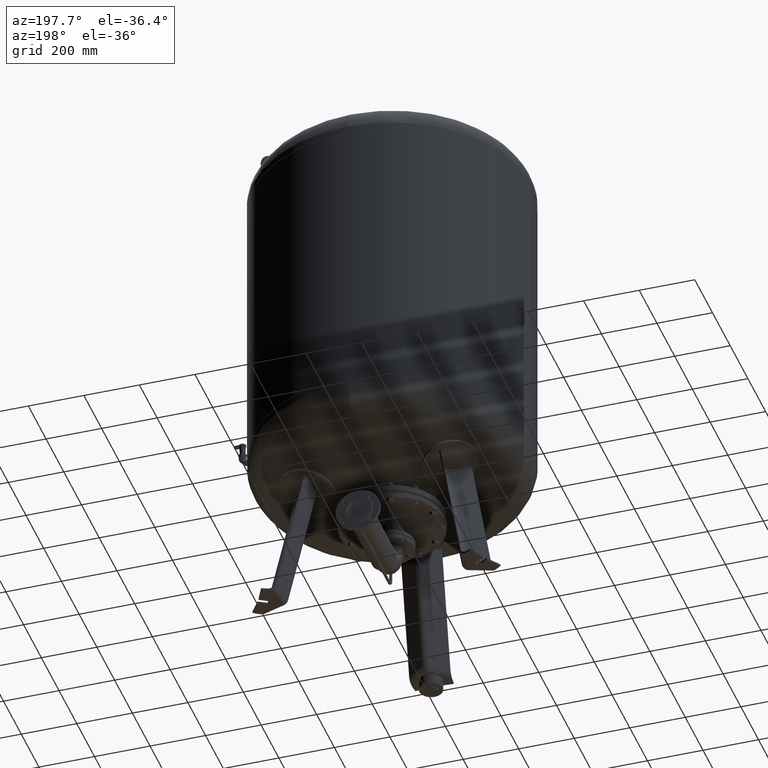
[diagram: clean part render]
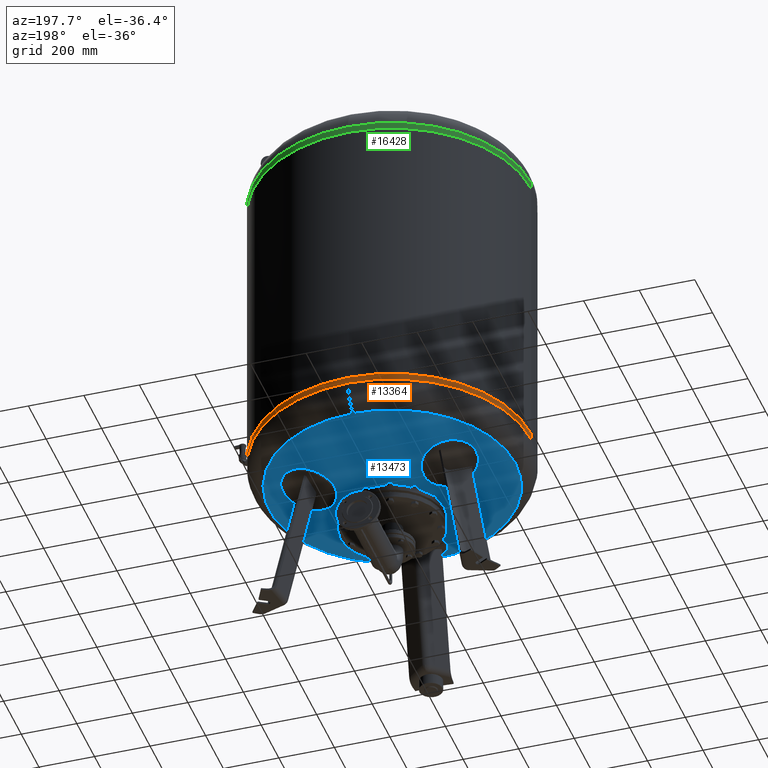
[diagram: same view with three faces highlighted in distinct colors, each labeled with its STEP entity id]
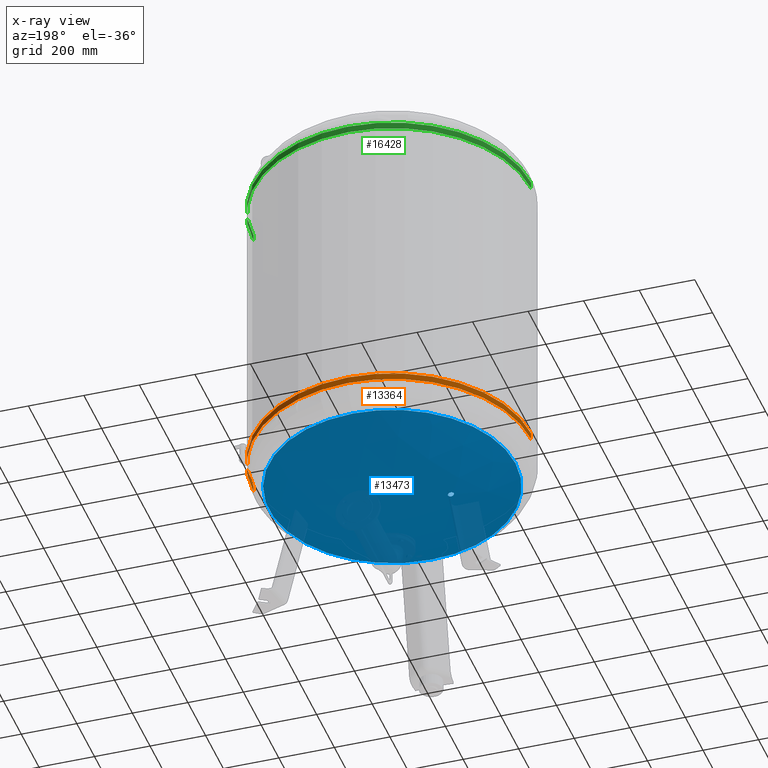
[diagram: x-ray of the same camera — body ghosted, the three highlighted faces saturated]
A machine part, auxiliary view with three faces highlighted in distinct colors.
The next image is the same camera in x-ray (body ghosted, the three faces saturated) — at least one of them is partly hidden behind the body in this view.
Their STEP definitions:

[orange] entity #13364 — the highlighted cylindrical surface (partial cylindrical patch) has radius 500 mm, axis along (-0, -0, 1).
#13314=CARTESIAN_POINT('',(-2.756489E-014,-3.774564E-014,665.477677536359810));
#13315=DIRECTION('',(-1.341503E-016,-1.836970E-016,1.0));
#13316=DIRECTION('',(-1.0,0.0,0.0));
#13317=AXIS2_PLACEMENT_3D('',#13314,#13315,#13316);
#13318=CYLINDRICAL_SURFACE('',#13317,500.0);
#13319=CARTESIAN_POINT('',(-500.0,-3.995410E-014,677.500000000000000));
#13320=VERTEX_POINT('',#13319);
#13321=CARTESIAN_POINT('',(-500.0,-3.553717E-014,653.455355072719390));
#13322=VERTEX_POINT('',#13321);
#13323=CARTESIAN_POINT('',(-500.0,-3.995410E-014,677.500000000000000));
#13324=DIRECTION('',(0.0,0.0,-1.0));
#13325=VECTOR('',#13324,24.044644927280615);
#13326=LINE('',#13323,#13325);
#13327=EDGE_CURVE('',#13320,#13322,#13326,.T.);
#13328=ORIENTED_EDGE('',*,*,#13327,.F.);
#13329=CARTESIAN_POINT('',(500.0,2.127622E-014,677.500000000000110));
#13330=VERTEX_POINT('',#13329);
#13331=CARTESIAN_POINT('',(-2.917769E-014,-3.995410E-014,677.500000000000000));
#13332=DIRECTION('',(0.0,0.0,1.0));
#13333=DIRECTION('',(-1.0,0.0,0.0));
#13334=AXIS2_PLACEMENT_3D('',#13331,#13332,#13333);
#13335=CIRCLE('',#13334,500.0);
#13336=EDGE_CURVE('',#13330,#13320,#13335,.T.);
#13337=ORIENTED_EDGE('',*,*,#13336,.F.);
#13338=CARTESIAN_POINT('',(500.0,2.569315E-014,653.455355072719500));
#13339=VERTEX_POINT('',#13338);
#13340=CARTESIAN_POINT('',(500.0,2.127622E-014,677.500000000000110));
#13341=DIRECTION('',(0.0,0.0,-1.0));
#13342=VECTOR('',#13341,24.044644927280615);
#13343=LINE('',#13340,#13342);
#13344=EDGE_CURVE('',#13330,#13339,#13343,.T.);
#13345=ORIENTED_EDGE('',*,*,#13344,.T.);
#13346=CARTESIAN_POINT('',(-6.123032E-014,499.999999999999940,653.455355072719610));
#13347=VERTEX_POINT('',#13346);
#13348=CARTESIAN_POINT('',(-2.595210E-014,-3.553717E-014,653.455355072719500));
#13349=DIRECTION('',(0.0,0.0,1.0));
#13350=DIRECTION('',(-1.0,0.0,0.0));
#13351=AXIS2_PLACEMENT_3D('',#13348,#13349,#13350);
#13352=CIRCLE('',#13351,500.0);
#13353=EDGE_CURVE('',#13339,#13347,#13352,.T.);
#13354=ORIENTED_EDGE('',*,*,#13353,.T.);
#13355=CARTESIAN_POINT('',(-2.595210E-014,-3.553717E-014,653.455355072719500));
#13356=DIRECTION('',(0.0,0.0,1.0));
#13357=DIRECTION('',(-1.0,0.0,0.0));
#13358=AXIS2_PLACEMENT_3D('',#13355,#13356,#13357);
#13359=CIRCLE('',#13358,500.0);
#13360=EDGE_CURVE('',#13347,#13322,#13359,.T.);
#13361=ORIENTED_EDGE('',*,*,#13360,.T.);
#13362=EDGE_LOOP('',(#13328,#13337,#13345,#13354,#13361));
#13363=FACE_OUTER_BOUND('',#13362,.T.);
#13364=ADVANCED_FACE('',(#13363),#13318,.T.);

[blue] entity #13473 — the highlighted spherical surface has radius 1006 mm.
#12859=CARTESIAN_POINT('',(-211.125624220251810,10.650000000000025,482.461211594779570));
#12860=VERTEX_POINT('',#12859);
#12876=CARTESIAN_POINT('',(-211.125624220251840,-10.649999999999979,482.461211594779460));
#12877=VERTEX_POINT('',#12876);
#12884=CARTESIAN_POINT('',(-211.125624220251840,-10.649999999999979,482.461211594779460));
#12885=CARTESIAN_POINT('',(-211.779366837099190,-10.649999999999979,482.601543445122730));
#12886=CARTESIAN_POINT('',(-212.455440132488210,-10.586020811985057,482.746668812052750));
#12887=CARTESIAN_POINT('',(-213.800320524656060,-10.316508147236522,483.035359855748140));
#12888=CARTESIAN_POINT('',(-214.469138658367290,-10.111032286166788,483.178927901604770));
#12889=CARTESIAN_POINT('',(-215.751922552204920,-9.567592266834247,483.454289478277810));
#12890=CARTESIAN_POINT('',(-216.366909830243170,-9.229195343095414,483.586302287240020));
#12891=CARTESIAN_POINT('',(-217.504221535740330,-8.447146982177264,483.830436995820550));
#12892=CARTESIAN_POINT('',(-218.026513927107150,-8.003446810011665,483.942552018269230));
#12893=CARTESIAN_POINT('',(-218.951040347873370,-7.057872723294627,484.141010422898830));
#12894=CARTESIAN_POINT('',(-219.384856037971620,-6.523702616499612,484.234133109701360));
#12895=CARTESIAN_POINT('',(-220.149485393383970,-5.360524383798429,484.398268132717360));
#12896=CARTESIAN_POINT('',(-220.480346687044520,-4.731549010339346,484.469290692466470));
#12897=CARTESIAN_POINT('',(-221.011686484263920,-3.419585184995595,484.583347899797220));
#12898=CARTESIAN_POINT('',(-221.212588135663030,-2.735551894637916,484.626473379908990));
#12899=CARTESIAN_POINT('',(-221.476101469240830,-1.360073995507774,484.683039063670090));
#12900=CARTESIAN_POINT('',(-221.538656816071100,-0.668618097348863,484.696467174334880));
#12901=CARTESIAN_POINT('',(-221.538656816071100,0.668618097348903,484.696467174334880));
#12902=CARTESIAN_POINT('',(-221.476101469240830,1.360073995507815,484.683039063670090));
#12903=CARTESIAN_POINT('',(-221.212588135663030,2.735551894637959,484.626473379908990));
#12904=CARTESIAN_POINT('',(-221.011686484263920,3.419585184995639,484.583347899797220));
#12905=CARTESIAN_POINT('',(-220.480346687044520,4.731549010339391,484.469290692466470));
#12906=CARTESIAN_POINT('',(-220.149485393383940,5.360524383798476,484.398268132717360));
#12907=CARTESIAN_POINT('',(-219.384856037971590,6.523702616499659,484.234133109701360));
#12908=CARTESIAN_POINT('',(-218.951040347873370,7.057872723294675,484.141010422898830));
#12909=CARTESIAN_POINT('',(-218.026513927107150,8.003446810011713,483.942552018269230));
#12910=CARTESIAN_POINT('',(-217.504221535740330,8.447146982177307,483.830436995820550));
#12911=CARTESIAN_POINT('',(-216.366909830243170,9.229195343095451,483.586302287240020));
#12912=CARTESIAN_POINT('',(-215.751922552204920,9.567592266834295,483.454289478277930));
#12913=CARTESIAN_POINT('',(-214.469138658367290,10.111032286166836,483.178927901604880));
#12914=CARTESIAN_POINT('',(-213.800320524656060,10.316508147236567,483.035359855748140));
#12915=CARTESIAN_POINT('',(-212.455440132488210,10.586020811985103,482.746668812052750));
#12916=CARTESIAN_POINT('',(-211.779366837099190,10.650000000000025,482.601543445122730));
#12917=CARTESIAN_POINT('',(-211.125624220251840,10.650000000000025,482.461211594779460));
#12918=B_SPLINE_CURVE_WITH_KNOTS('',3,(#12884,#12885,#12886,#12887,#12888,#12889,#12890,#12891,#12892,#12893,#12894,#12895,#12896,#12897,#12898,#12899,#12900,#12901,#12902,#12903,#12904,#12905,#12906,#12907,#12908,#12909,#12910,#12911,#12912,#12913,#12914,#12915,#12916,#12917),.UNSPECIFIED.,.F.,.U.,(4,2,2,2,2,2,2,2,2,2,2,2,2,2,2,2,4),(32.094068530974205,34.099972799808725,36.105877068643252,38.111781337477773,40.117685606312293,42.123539898358942,44.129394190405584,46.135248482452226,48.141102774498876,50.146957066545525,52.152811358592167,54.158665650638810,56.164519942685459,58.170424211519979,60.176328480354499,62.182232749189019,64.188137018023539),.UNSPECIFIED.);
#12919=EDGE_CURVE('',#12877,#12860,#12918,.T.);
#13372=CARTESIAN_POINT('',(1.211146E-014,-443.777777777777600,563.172616747466120));
#13373=VERTEX_POINT('',#13372);
#13389=CARTESIAN_POINT('',(-4.223385E-014,443.777777777777600,563.172616747466350));
#13390=VERTEX_POINT('',#13389);
#13398=CARTESIAN_POINT('',(-443.777777777777600,-1.895250E-014,563.172616747466240));
#13399=VERTEX_POINT('',#13398);
#13400=CARTESIAN_POINT('',(-1.384064E-014,-1.895250E-014,563.172616747466240));
#13401=DIRECTION('',(0.0,0.0,1.0));
#13402=DIRECTION('',(-1.0,0.0,0.0));
#13403=AXIS2_PLACEMENT_3D('',#13400,#13401,#13402);
#13404=CIRCLE('',#13403,443.777777777777600);
#13405=EDGE_CURVE('',#13390,#13399,#13404,.T.);
#13407=CARTESIAN_POINT('',(-1.384064E-014,-1.895250E-014,563.172616747466240));
#13408=DIRECTION('',(0.0,0.0,1.0));
#13409=DIRECTION('',(-1.0,0.0,0.0));
#13410=AXIS2_PLACEMENT_3D('',#13407,#13408,#13409);
#13411=CIRCLE('',#13410,443.777777777777600);
#13412=EDGE_CURVE('',#13399,#13373,#13411,.T.);
#13417=CARTESIAN_POINT('',(-2.223045E-013,-1.847992E-013,1466.0));
#13418=DIRECTION('',(0.0,-1.0,0.0));
#13419=DIRECTION('',(1.0,0.0,0.0));
#13420=AXIS2_PLACEMENT_3D('',#13417,#13418,#13419);
#13421=SPHERICAL_SURFACE('',#13420,1006.000000000000100);
#13422=ORIENTED_EDGE('',*,*,#13412,.F.);
#13423=ORIENTED_EDGE('',*,*,#13405,.F.);
#13424=CARTESIAN_POINT('',(-1.384064E-014,-1.895250E-014,563.172616747466240));
#13425=DIRECTION('',(0.0,0.0,1.0));
#13426=DIRECTION('',(-1.0,0.0,0.0));
#13427=AXIS2_PLACEMENT_3D('',#13424,#13425,#13426);
#13428=CIRCLE('',#13427,443.777777777777600);
#13429=EDGE_CURVE('',#13373,#13390,#13428,.T.);
#13430=ORIENTED_EDGE('',*,*,#13429,.F.);
#13431=EDGE_LOOP('',(#13422,#13423,#13430));
#13432=FACE_OUTER_BOUND('',#13431,.T.);
#13433=CARTESIAN_POINT('',(-211.125624220251840,10.650000000000025,482.461211594779460));
#13434=CARTESIAN_POINT('',(-210.471881601776740,10.650000000000025,482.320879744086770));
#13435=CARTESIAN_POINT('',(-209.795808291734690,10.586020811668353,482.175754437149860));
#13436=CARTESIAN_POINT('',(-208.450927843160910,10.316508146035659,481.887063639687370));
#13437=CARTESIAN_POINT('',(-207.782109667580980,10.111032285181981,481.743495779879080));
#13438=CARTESIAN_POINT('',(-206.499325670120810,9.567592263440147,481.468134671375140));
#13439=CARTESIAN_POINT('',(-205.884338329224930,9.229195339867466,481.336122144238400));
#13440=CARTESIAN_POINT('',(-204.747026489921500,8.447146978150595,481.091988040865150));
#13441=CARTESIAN_POINT('',(-204.224734027310090,8.003446805672720,480.979873341086030));
#13442=CARTESIAN_POINT('',(-203.300207469747620,7.057872719210343,480.781415560182670));
#13443=CARTESIAN_POINT('',(-202.866391709050130,6.523702613103928,480.688293196180550));
#13444=CARTESIAN_POINT('',(-202.101762220856560,5.360524381699865,480.524158778579020));
#13445=CARTESIAN_POINT('',(-201.770900864883910,4.731549009030496,480.453136500767410));
#13446=CARTESIAN_POINT('',(-201.239560964986250,3.419585184399890,480.339079761801200));
#13447=CARTESIAN_POINT('',(-201.038659272105550,2.735551894433304,480.295954467818830));
#13448=CARTESIAN_POINT('',(-200.775145883929530,1.360073995652741,480.239389030676310));
#13449=CARTESIAN_POINT('',(-200.712590523707350,0.668618097514268,480.225960980274750));
#13450=CARTESIAN_POINT('',(-200.712590523707350,-0.668618097514221,480.225960980274750));
#13451=CARTESIAN_POINT('',(-200.775145883929530,-1.360073995652695,480.239389030676310));
#13452=CARTESIAN_POINT('',(-201.038659272105550,-2.735551894433257,480.295954467818830));
#13453=CARTESIAN_POINT('',(-201.239560964986250,-3.419585184399842,480.339079761801200));
#13454=CARTESIAN_POINT('',(-201.770900864883910,-4.731549009030447,480.453136500767410));
#13455=CARTESIAN_POINT('',(-202.101762220856560,-5.360524381699816,480.524158778579020));
#13456=CARTESIAN_POINT('',(-202.866391709050130,-6.523702613103879,480.688293196180550));
#13457=CARTESIAN_POINT('',(-203.300207469747620,-7.057872719210294,480.781415560182670));
#13458=CARTESIAN_POINT('',(-204.224734027310090,-8.003446805672674,480.979873341086030));
#13459=CARTESIAN_POINT('',(-204.747026489921500,-8.447146978150547,481.091988040865150));
#13460=CARTESIAN_POINT('',(-205.884338329224930,-9.229195339867419,481.336122144238400));
#13461=CARTESIAN_POINT('',(-206.499325670120810,-9.567592263440101,481.468134671375140));
#13462=CARTESIAN_POINT('',(-207.782109667580980,-10.111032285181935,481.743495779879080));
#13463=CARTESIAN_POINT('',(-208.450927843160910,-10.316508146035615,481.887063639687370));
#13464=CARTESIAN_POINT('',(-209.795808291734690,-10.586020811668309,482.175754437149860));
#13465=CARTESIAN_POINT('',(-210.471881601776740,-10.649999999999979,482.320879744086770));
#13466=CARTESIAN_POINT('',(-211.125624220251840,-10.649999999999979,482.461211594779460));
#13467=B_SPLINE_CURVE_WITH_KNOTS('',3,(#13433,#13434,#13435,#13436,#13437,#13438,#13439,#13440,#13441,#13442,#13443,#13444,#13445,#13446,#13447,#13448,#13449,#13450,#13451,#13452,#13453,#13454,#13455,#13456,#13457,#13458,#13459,#13460,#13461,#13462,#13463,#13464,#13465,#13466),.UNSPECIFIED.,.F.,.U.,(4,2,2,2,2,2,2,2,2,2,2,2,2,2,2,2,4),(0.0,2.005904273829041,4.011808547658083,6.017712821487124,8.023617095316165,10.029471387858898,12.035325680401632,14.041179972944366,16.047034265487099,18.052888558029835,20.058742850572568,22.064597143115300,24.070451435658036,26.076355709487078,28.082259983316121,30.088164257145163,32.094068530974205),.UNSPECIFIED.);
#13468=EDGE_CURVE('',#12860,#12877,#13467,.T.);
#13469=ORIENTED_EDGE('',*,*,#13468,.F.);
#13470=ORIENTED_EDGE('',*,*,#12919,.F.);
#13471=EDGE_LOOP('',(#13469,#13470));
#13472=FACE_BOUND('',#13471,.T.);
#13473=ADVANCED_FACE('',(#13432,#13472),#13421,.T.);

[green] entity #16428 — the highlighted cylindrical surface (partial cylindrical patch) has radius 500 mm, axis along (0, -0, -1).
#16378=CARTESIAN_POINT('',(2.401136E-015,-3.774564E-014,1734.522322463640200));
#16379=DIRECTION('',(1.168563E-017,-1.836970E-016,-1.0));
#16380=DIRECTION('',(1.0,0.0,0.0));
#16381=AXIS2_PLACEMENT_3D('',#16378,#16379,#16380);
#16382=CYLINDRICAL_SURFACE('',#16381,500.0);
#16383=CARTESIAN_POINT('',(500.0,-3.995410E-014,1722.500000000000000));
#16384=VERTEX_POINT('',#16383);
#16385=CARTESIAN_POINT('',(500.0,-3.553717E-014,1746.544644927280400));
#16386=VERTEX_POINT('',#16385);
#16387=CARTESIAN_POINT('',(500.0,-3.995410E-014,1722.500000000000000));
#16388=DIRECTION('',(0.0,0.0,1.0));
#16389=VECTOR('',#16388,24.044644927280387);
#16390=LINE('',#16387,#16389);
#16391=EDGE_CURVE('',#16384,#16386,#16390,.T.);
#16392=ORIENTED_EDGE('',*,*,#16391,.F.);
#16393=CARTESIAN_POINT('',(-500.0,2.127622E-014,1722.500000000000000));
#16394=VERTEX_POINT('',#16393);
#16395=CARTESIAN_POINT('',(2.541624E-015,-3.995410E-014,1722.500000000000000));
#16396=DIRECTION('',(0.0,0.0,-1.0));
#16397=DIRECTION('',(1.0,0.0,0.0));
#16398=AXIS2_PLACEMENT_3D('',#16395,#16396,#16397);
#16399=CIRCLE('',#16398,500.0);
#16400=EDGE_CURVE('',#16394,#16384,#16399,.T.);
#16401=ORIENTED_EDGE('',*,*,#16400,.F.);
#16402=CARTESIAN_POINT('',(-500.0,2.569315E-014,1746.544644927280400));
#16403=VERTEX_POINT('',#16402);
#16404=CARTESIAN_POINT('',(-500.0,2.127622E-014,1722.500000000000000));
#16405=DIRECTION('',(0.0,0.0,1.0));
#16406=VECTOR('',#16405,24.044644927280387);
#16407=LINE('',#16404,#16406);
#16408=EDGE_CURVE('',#16394,#16403,#16407,.T.);
#16409=ORIENTED_EDGE('',*,*,#16408,.T.);
#16410=CARTESIAN_POINT('',(3.753887E-014,499.999999999999940,1746.544644927280400));
#16411=VERTEX_POINT('',#16410);
#16412=CARTESIAN_POINT('',(2.260647E-015,-3.553717E-014,1746.544644927280400));
#16413=DIRECTION('',(0.0,0.0,-1.0));
#16414=DIRECTION('',(1.0,0.0,0.0));
#16415=AXIS2_PLACEMENT_3D('',#16412,#16413,#16414);
#16416=CIRCLE('',#16415,500.0);
#16417=EDGE_CURVE('',#16403,#16411,#16416,.T.);
#16418=ORIENTED_EDGE('',*,*,#16417,.T.);
#16419=CARTESIAN_POINT('',(2.260647E-015,-3.553717E-014,1746.544644927280400));
#16420=DIRECTION('',(0.0,0.0,-1.0));
#16421=DIRECTION('',(1.0,0.0,0.0));
#16422=AXIS2_PLACEMENT_3D('',#16419,#16420,#16421);
#16423=CIRCLE('',#16422,500.0);
#16424=EDGE_CURVE('',#16411,#16386,#16423,.T.);
#16425=ORIENTED_EDGE('',*,*,#16424,.T.);
#16426=EDGE_LOOP('',(#16392,#16401,#16409,#16418,#16425));
#16427=FACE_OUTER_BOUND('',#16426,.T.);
#16428=ADVANCED_FACE('',(#16427),#16382,.T.);